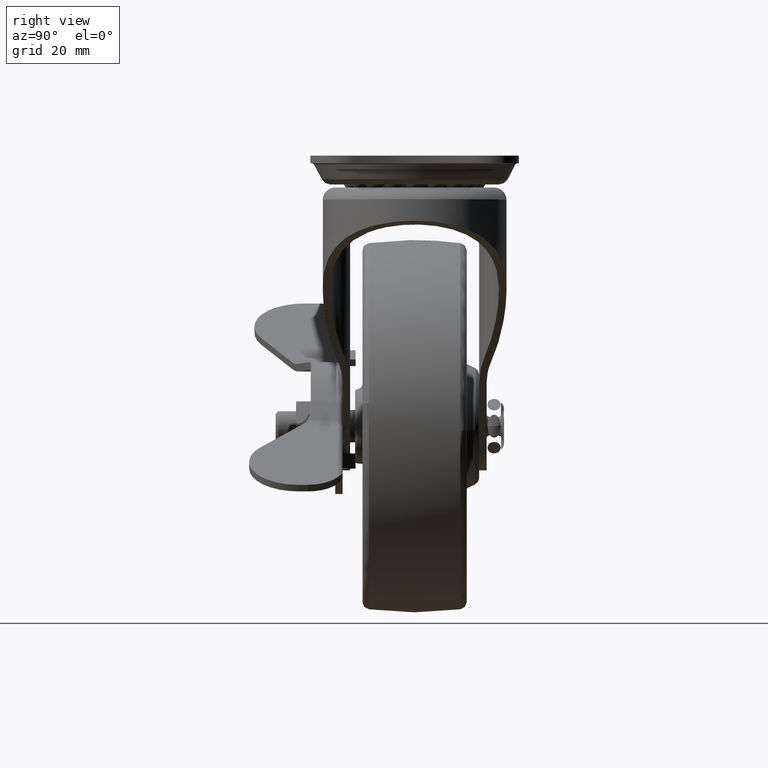
[diagram: clean part render]
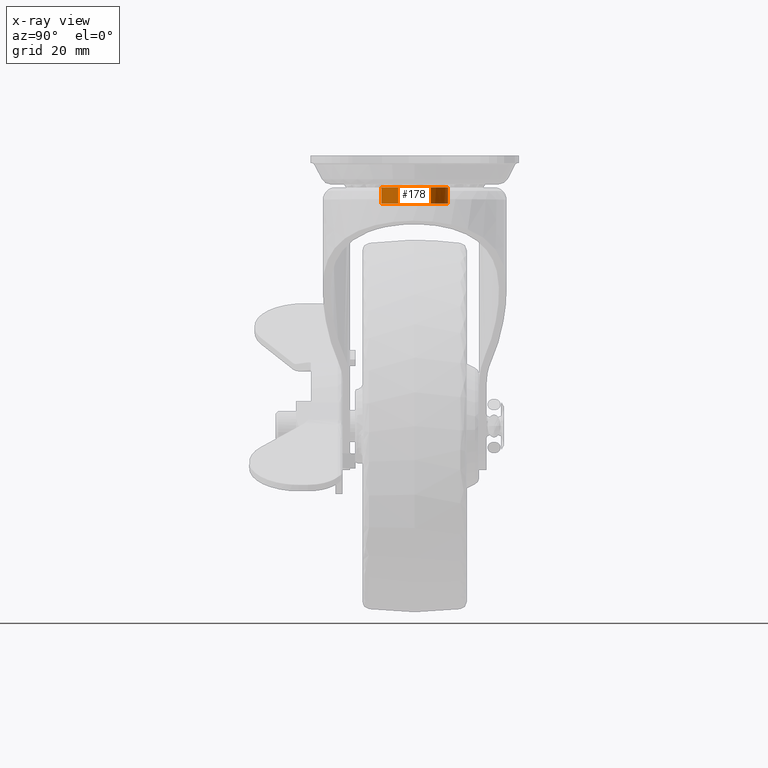
[diagram: x-ray — body ghosted, one internal face saturated and labeled with its STEP entity id]
A machine part, right view, then the same camera in x-ray: the body is ghosted and one INTERNAL B-rep face — a face not visible from any outside direction — is saturated and labeled: STEP entity #178.
In plain terms, the highlighted face is a freeform B-spline surface patch.
Its self-contained STEP definition (entity closure, byte-faithful):
#44=CARTESIAN_POINT('',(-5.282605058753792,4.201973797303931,-4.818373984128620));
#45=CARTESIAN_POINT('',(-1.080631261449861,9.484578856057723,-4.818373984128620));
#46=CARTESIAN_POINT('',(4.201973797303931,5.282605058753792,-4.818373984128620));
#47=CARTESIAN_POINT('',(9.484578856057723,1.080631261449861,-4.818373984128620));
#48=CARTESIAN_POINT('',(5.282605058753792,-4.201973797303931,-4.818373984128620));
#49=CARTESIAN_POINT('',(1.080631261449861,-9.484578856057723,-4.818373984128620));
#50=CARTESIAN_POINT('',(-4.201973797303931,-5.282605058753792,-4.818373984128620));
#51=CARTESIAN_POINT('',(-5.282605058753792,4.201973797303931,-8.248656871124645));
#52=CARTESIAN_POINT('',(-1.080631261449861,9.484578856057723,-8.248656871124645));
#53=CARTESIAN_POINT('',(4.201973797303931,5.282605058753792,-8.248656871124645));
#54=CARTESIAN_POINT('',(9.484578856057723,1.080631261449861,-8.248656871124645));
#55=CARTESIAN_POINT('',(5.282605058753792,-4.201973797303931,-8.248656871124645));
#56=CARTESIAN_POINT('',(1.080631261449861,-9.484578856057723,-8.248656871124645));
#57=CARTESIAN_POINT('',(-4.201973797303931,-5.282605058753792,-8.248656871124645));
#65=(BOUNDED_SURFACE()B_SPLINE_SURFACE(2,1,((#44,#51),(#45,#52),(#46,#53),(#47,#54),(#48,#55),(#49,#56),(#50,#57)),.UNSPECIFIED.,.F.,.F.,.U.)B_SPLINE_SURFACE_WITH_KNOTS((3,2,2,3),(2,2),(0.0,11.183766184073560,22.367532368147131,33.551298552220693),(0.0,3.430282886996026),.UNSPECIFIED.)GEOMETRIC_REPRESENTATION_ITEM()RATIONAL_B_SPLINE_SURFACE(((1.0,1.0),(0.707106781186548,0.707106781186548),(1.0,1.0),(0.707106781186548,0.707106781186548),(1.0,1.0),(0.707106781186548,0.707106781186548),(1.0,1.0)))REPRESENTATION_ITEM('')SURFACE());
#66=CARTESIAN_POINT('',(-5.282606797606776,4.201971611264274,-8.164991434779157));
#67=VERTEX_POINT('',#66);
#68=CARTESIAN_POINT('',(0.0,6.749999999999998,-8.164991434838941));
#69=VERTEX_POINT('',#68);
#70=CARTESIAN_POINT('',(-5.282606797606777,4.201971611264274,-8.164991434779157));
#71=CARTESIAN_POINT('',(-3.255815222089621,6.750000000000001,-8.164991434801925));
#72=CARTESIAN_POINT('',(0.0,6.749999999999998,-8.164991434838941));
#80=(BOUNDED_CURVE()B_SPLINE_CURVE(2,(#70,#71,#72),.UNSPECIFIED.,.F.,.U.)B_SPLINE_CURVE_WITH_KNOTS((3,3),(0.107863814749742,0.250000000000000),.UNSPECIFIED.)CURVE()GEOMETRIC_REPRESENTATION_ITEM()RATIONAL_B_SPLINE_CURVE((0.856305638765841,0.833477100768747,1.0))REPRESENTATION_ITEM(''));
#81=EDGE_CURVE('',#67,#69,#80,.T.);
#82=ORIENTED_EDGE('',*,*,#81,.T.);
#83=CARTESIAN_POINT('',(6.750000000000000,0.0,-8.164991434762200));
#84=VERTEX_POINT('',#83);
#85=CARTESIAN_POINT('',(0.0,6.749999999999998,-8.164991434838941));
#86=CARTESIAN_POINT('',(6.750000000000000,6.750000000000000,-8.164991434762200));
#87=CARTESIAN_POINT('',(6.750000000000000,0.0,-8.164991434762200));
#95=(BOUNDED_CURVE()B_SPLINE_CURVE(2,(#85,#86,#87),.UNSPECIFIED.,.F.,.U.)B_SPLINE_CURVE_WITH_KNOTS((3,3),(0.250000000000000,0.500000000000000),.UNSPECIFIED.)CURVE()GEOMETRIC_REPRESENTATION_ITEM()RATIONAL_B_SPLINE_CURVE((1.0,0.707106781186548,1.0))REPRESENTATION_ITEM(''));
#96=EDGE_CURVE('',#69,#84,#95,.T.);
#97=ORIENTED_EDGE('',*,*,#96,.T.);
#98=CARTESIAN_POINT('',(0.779383548299933,-6.704853561759525,-8.164991434856450));
#99=VERTEX_POINT('',#98);
#100=CARTESIAN_POINT('',(6.750000000000000,0.0,-8.164991434762200));
#101=CARTESIAN_POINT('',(6.749999999999999,-6.010818979964242,-8.164991434762198));
#102=CARTESIAN_POINT('',(0.779383548299933,-6.704853561759525,-8.164991434856450));
#110=(BOUNDED_CURVE()B_SPLINE_CURVE(2,(#100,#101,#102),.UNSPECIFIED.,.F.,.U.)B_SPLINE_CURVE_WITH_KNOTS((3,3),(0.500000000000000,0.729999999982735),.UNSPECIFIED.)CURVE()GEOMETRIC_REPRESENTATION_ITEM()RATIONAL_B_SPLINE_CURVE((1.0,0.730538238711851,0.956886118156678))REPRESENTATION_ITEM(''));
#111=EDGE_CURVE('',#84,#99,#110,.T.);
#112=ORIENTED_EDGE('',*,*,#111,.T.);
#113=CARTESIAN_POINT('',(-4.201971587760533,-5.282606816302463,-8.164991434762712));
#114=VERTEX_POINT('',#113);
#115=CARTESIAN_POINT('',(0.779383548299933,-6.704853561759525,-8.164991434856450));
#116=CARTESIAN_POINT('',(0.390999346756314,-6.750000000000000,-8.164991434762200));
#117=CARTESIAN_POINT('',(0.0,-6.750000000000000,-8.164991434762200));
#118=CARTESIAN_POINT('',(-2.357203941788970,-6.750000000000001,-8.164991434762200));
#119=CARTESIAN_POINT('',(-4.201971587760533,-5.282606816302464,-8.164991434762712));
#127=(BOUNDED_CURVE()B_SPLINE_CURVE(2,(#115,#116,#117,#118,#119),.UNSPECIFIED.,.F.,.U.)B_SPLINE_CURVE_WITH_KNOTS((3,2,3),(0.729999999982734,0.750000000000000,0.857863814076234),.UNSPECIFIED.)CURVE()GEOMETRIC_REPRESENTATION_ITEM()RATIONAL_B_SPLINE_CURVE((0.956886118156677,0.976568542474696,1.0,0.873629681206864,0.856305638982186))REPRESENTATION_ITEM(''));
#128=EDGE_CURVE('',#99,#114,#127,.T.);
#129=ORIENTED_EDGE('',*,*,#128,.T.);
#130=CARTESIAN_POINT('',(-4.201969757542047,-5.282608272120447,-4.899998800000031));
#131=VERTEX_POINT('',#130);
#132=CARTESIAN_POINT('',(-4.201969757542047,-5.282608272120447,-4.899998800000031));
#133=CARTESIAN_POINT('',(-4.201971587760533,-5.282606816302463,-8.164991434762712));
#134=QUASI_UNIFORM_CURVE('',1,(#132,#133),.UNSPECIFIED.,.F.,.U.);
#135=EDGE_CURVE('',#131,#114,#134,.T.);
#136=ORIENTED_EDGE('',*,*,#135,.F.);
#137=CARTESIAN_POINT('',(6.750000000000000,0.0,-4.899998800000031));
#138=VERTEX_POINT('',#137);
#139=CARTESIAN_POINT('',(6.750000000000000,0.0,-4.899998800000031));
#140=CARTESIAN_POINT('',(6.750000000000000,-6.750000000000000,-4.899998800000030));
#141=CARTESIAN_POINT('',(0.0,-6.750000000000000,-4.899998800000031));
#142=CARTESIAN_POINT('',(-2.357202629884598,-6.750000000000000,-4.899998800000031));
#143=CARTESIAN_POINT('',(-4.201969757542047,-5.282608272120447,-4.899998800000031));
#151=(BOUNDED_CURVE()B_SPLINE_CURVE(2,(#139,#140,#141,#142,#143),.UNSPECIFIED.,.F.,.U.)B_SPLINE_CURVE_WITH_KNOTS((3,2,3),(0.0,0.250000000000000,0.357863761630738),.UNSPECIFIED.)CURVE()GEOMETRIC_REPRESENTATION_ITEM()RATIONAL_B_SPLINE_CURVE((1.0,0.707106781186548,1.0,0.873629742650585,0.856305655828788))REPRESENTATION_ITEM(''));
#152=EDGE_CURVE('',#138,#131,#151,.T.);
#153=ORIENTED_EDGE('',*,*,#152,.F.);
#154=CARTESIAN_POINT('',(-5.282606776144030,4.201971638246688,-4.899998800000031));
#155=VERTEX_POINT('',#154);
#156=CARTESIAN_POINT('',(-5.282606776144030,4.201971638246687,-4.899998800000032));
#157=CARTESIAN_POINT('',(-3.255815200840176,6.750000000000001,-4.899998800000031));
#158=CARTESIAN_POINT('',(0.0,6.750000000000000,-4.899998800000031));
#159=CARTESIAN_POINT('',(6.750000000000000,6.750000000000000,-4.899998800000030));
#160=CARTESIAN_POINT('',(6.750000000000000,0.0,-4.899998800000031));
#168=(BOUNDED_CURVE()B_SPLINE_CURVE(2,(#156,#157,#158,#159,#160),.UNSPECIFIED.,.F.,.U.)B_SPLINE_CURVE_WITH_KNOTS((3,2,3),(0.607863815522932,0.750000000000000,1.0),.UNSPECIFIED.)CURVE()GEOMETRIC_REPRESENTATION_ITEM()RATIONAL_B_SPLINE_CURVE((0.856305638517477,0.833477101674595,1.0,0.707106781186548,1.0))REPRESENTATION_ITEM(''));
#169=EDGE_CURVE('',#155,#138,#168,.T.);
#170=ORIENTED_EDGE('',*,*,#169,.F.);
#171=CARTESIAN_POINT('',(-5.282606776144030,4.201971638246688,-4.899998800000031));
#172=CARTESIAN_POINT('',(-5.282606797606776,4.201971611264274,-8.164991434779157));
#173=QUASI_UNIFORM_CURVE('',1,(#171,#172),.UNSPECIFIED.,.F.,.U.);
#174=EDGE_CURVE('',#155,#67,#173,.T.);
#175=ORIENTED_EDGE('',*,*,#174,.T.);
#176=EDGE_LOOP('',(#82,#97,#112,#129,#136,#153,#170,#175));
#177=FACE_OUTER_BOUND('',#176,.T.);
#178=ADVANCED_FACE('',(#177),#65,.F.);